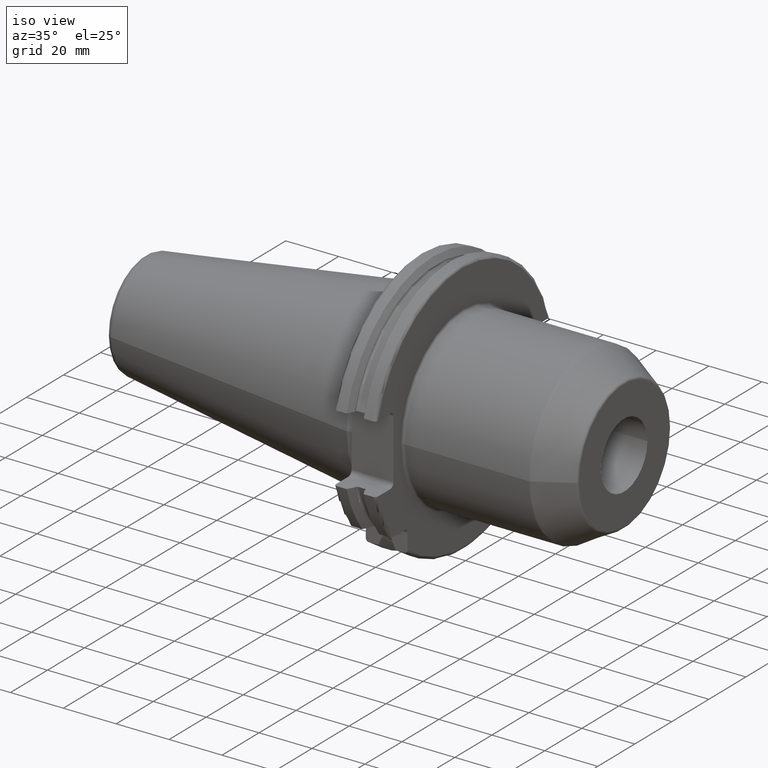
[diagram: clean part render]
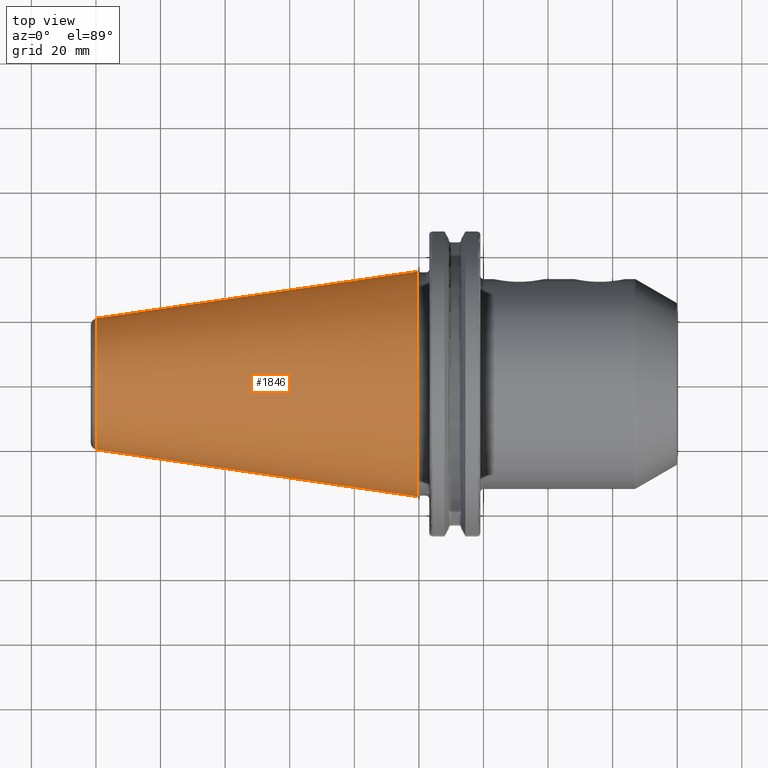
[diagram: tour spotlight — one face highlighted and labeled with its STEP entity id]
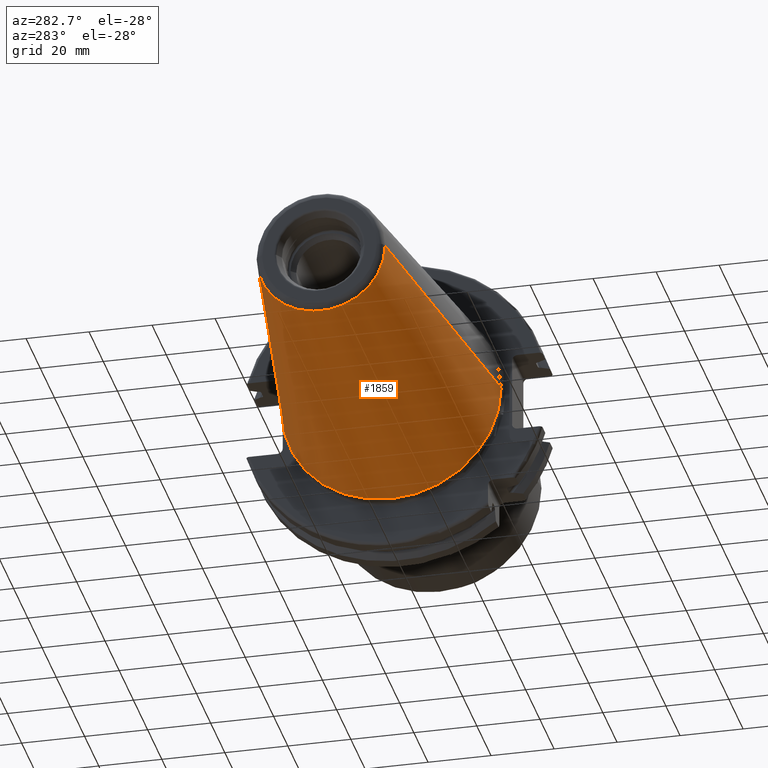
[diagram: tour spotlight — one face highlighted and labeled with its STEP entity id]
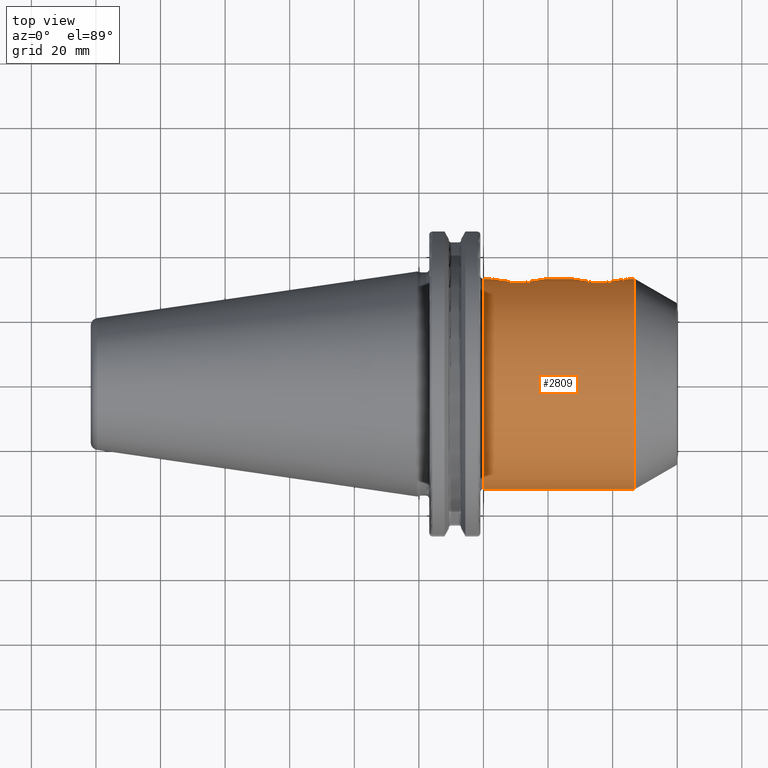
[diagram: tour spotlight — one face highlighted and labeled with its STEP entity id]
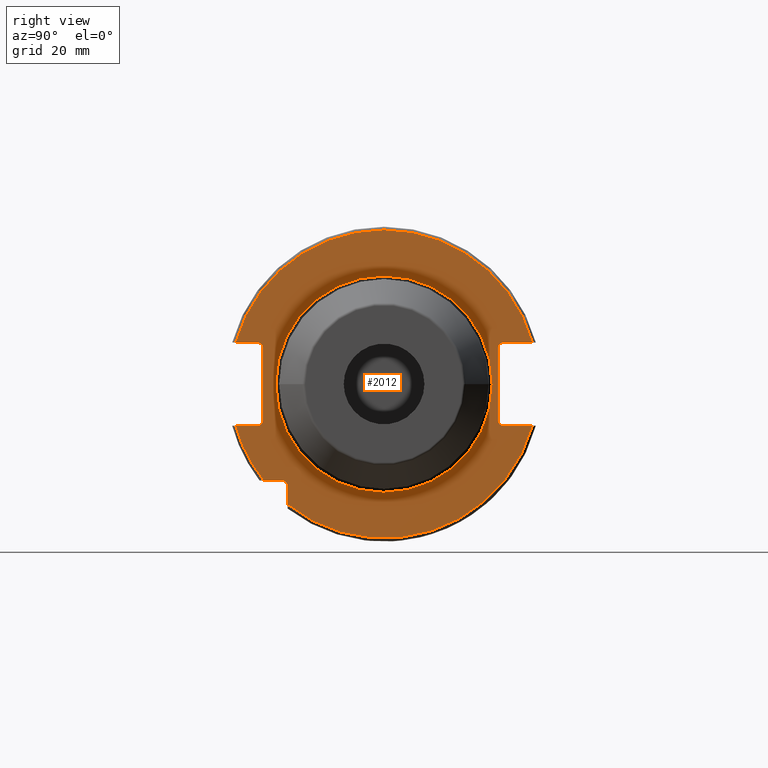
[diagram: tour spotlight — one face highlighted and labeled with its STEP entity id]
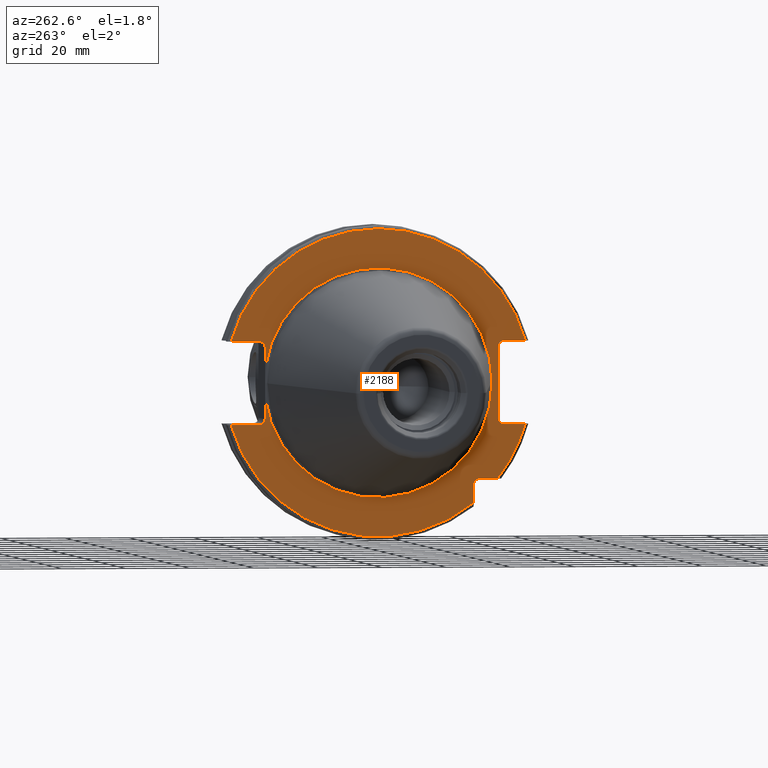
[diagram: tour spotlight — one face highlighted and labeled with its STEP entity id]
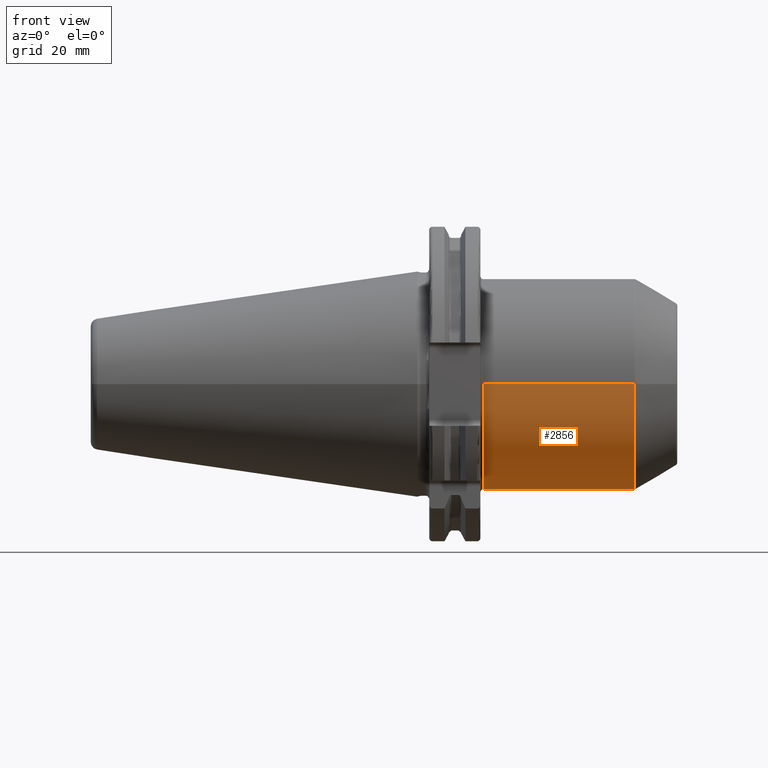
[diagram: tour spotlight — one face highlighted and labeled with its STEP entity id]
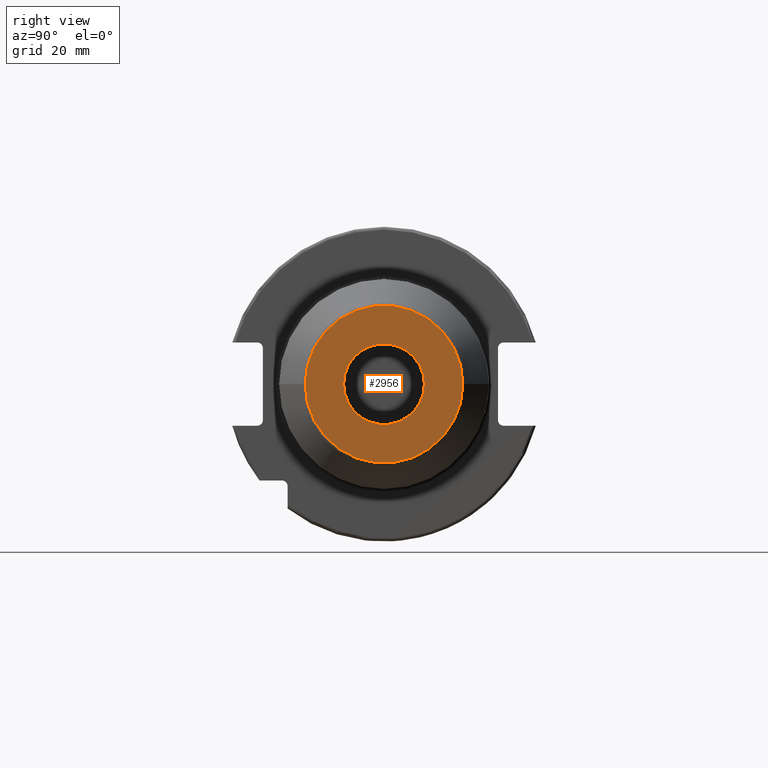
[diagram: tour spotlight — one face highlighted and labeled with its STEP entity id]
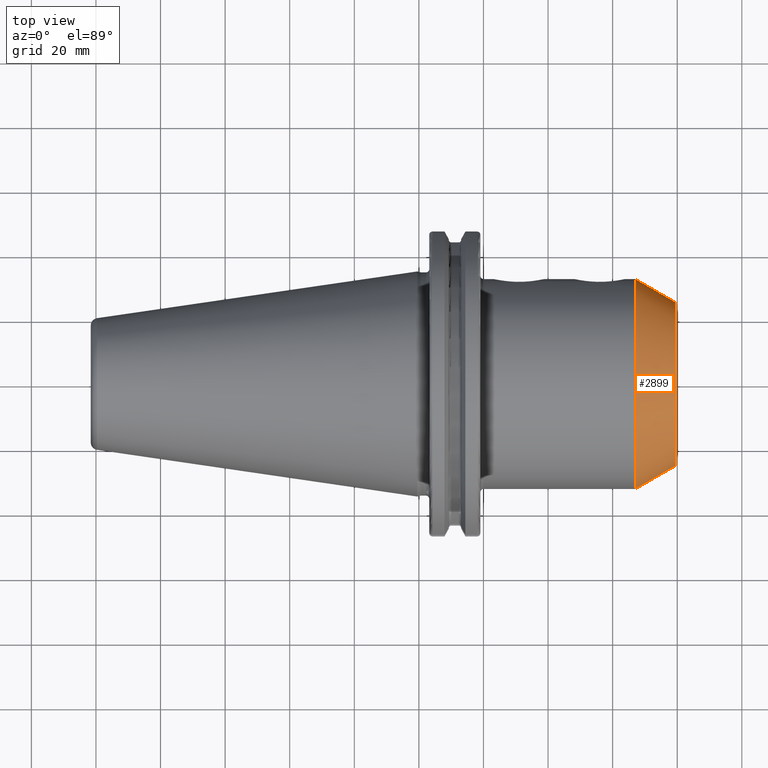
[diagram: tour spotlight — one face highlighted and labeled with its STEP entity id]
A machine part: a face-by-face anatomy tour. The part has 107 B-rep faces; the first image is the clean iso view, then the 8 largest visible faces are spotlighted one at a time (largest first), each with its STEP entity span.

Face 1 — top view, entity #1846. In plain terms, the highlighted conical surface has half-angle 8.298 deg.
Definition (entity closure, byte-faithful):
#37=CARTESIAN_POINT('',(-9.967471700563E1,0.E0,0.E0));
#38=DIRECTION('',(1.E0,0.E0,0.E0));
#39=DIRECTION('',(0.E0,1.E0,0.E0));
#40=AXIS2_PLACEMENT_3D('',#37,#38,#39);
#42=CARTESIAN_POINT('',(-4.896823332305E-1,0.E0,0.E0));
#43=DIRECTION('',(1.E0,0.E0,0.E0));
#44=DIRECTION('',(0.E0,1.E0,0.E0));
#45=AXIS2_PLACEMENT_3D('',#42,#43,#44);
#47=DIRECTION('',(-9.895312636440E-1,-1.443186691705E-1,0.E0));
#48=VECTOR('',#47,1.002343617797E2);
#49=CARTESIAN_POINT('',(-4.896823332305E-1,3.485358204157E1,0.E0));
#50=LINE('',#49,#48);
#51=DIRECTION('',(-9.895312636440E-1,1.443186691705E-1,0.E0));
#52=VECTOR('',#51,1.002343617797E2);
#53=CARTESIAN_POINT('',(-4.896823332305E-1,-3.485358204157E1,0.E0));
#54=LINE('',#53,#52);
#1510=CARTESIAN_POINT('',(-9.967471700563E1,2.038789234437E1,0.E0));
#1512=VERTEX_POINT('',#1510);
#1514=CARTESIAN_POINT('',(-9.967471700563E1,-2.038789234437E1,0.E0));
#1516=VERTEX_POINT('',#1514);
#1578=CARTESIAN_POINT('',(-4.896823332305E-1,3.485358204157E1,0.E0));
#1579=VERTEX_POINT('',#1578);
#1580=CARTESIAN_POINT('',(-4.896823332305E-1,-3.485358204157E1,0.E0));
#1581=VERTEX_POINT('',#1580);
#1832=CARTESIAN_POINT('',(-5.008219966943E1,0.E0,0.E0));
#1833=DIRECTION('',(1.E0,0.E0,0.E0));
#1834=DIRECTION('',(0.E0,-1.E0,0.E0));
#1835=AXIS2_PLACEMENT_3D('',#1832,#1833,#1834);
#1836=CONICAL_SURFACE('',#1835,2.762073719297E1,8.297826828206E0);
#1838=ORIENTED_EDGE('',*,*,#1837,.F.);
#1840=ORIENTED_EDGE('',*,*,#1839,.T.);
#1842=ORIENTED_EDGE('',*,*,#1841,.T.);
#1843=ORIENTED_EDGE('',*,*,#1825,.F.);
#1844=EDGE_LOOP('',(#1838,#1840,#1842,#1843));
#1845=FACE_OUTER_BOUND('',#1844,.F.);
#1846=ADVANCED_FACE('',(#1845),#1836,.T.);
#41=CIRCLE('',#40,2.038789234437E1);
#46=CIRCLE('',#45,3.485358204157E1);
#1825=EDGE_CURVE('',#1512,#1516,#41,.T.);
#1837=EDGE_CURVE('',#1579,#1512,#50,.T.);
#1839=EDGE_CURVE('',#1579,#1581,#46,.T.);
#1841=EDGE_CURVE('',#1581,#1516,#54,.T.);

Face 2 — auxiliary view, entity #1859. In plain terms, the highlighted conical surface has half-angle 8.298 deg.
Definition (entity closure, byte-faithful):
#32=CARTESIAN_POINT('',(-9.967471700563E1,0.E0,0.E0));
#33=DIRECTION('',(-1.E0,0.E0,0.E0));
#34=DIRECTION('',(0.E0,1.E0,0.E0));
#35=AXIS2_PLACEMENT_3D('',#32,#33,#34);
#47=DIRECTION('',(-9.895312636440E-1,-1.443186691705E-1,0.E0));
#48=VECTOR('',#47,1.002343617797E2);
#49=CARTESIAN_POINT('',(-4.896823332305E-1,3.485358204157E1,0.E0));
#50=LINE('',#49,#48);
#51=DIRECTION('',(-9.895312636440E-1,1.443186691705E-1,0.E0));
#52=VECTOR('',#51,1.002343617797E2);
#53=CARTESIAN_POINT('',(-4.896823332305E-1,-3.485358204157E1,0.E0));
#54=LINE('',#53,#52);
#55=CARTESIAN_POINT('',(-4.896823332305E-1,0.E0,0.E0));
#56=DIRECTION('',(-1.E0,0.E0,0.E0));
#57=DIRECTION('',(0.E0,1.E0,0.E0));
#58=AXIS2_PLACEMENT_3D('',#55,#56,#57);
#1510=CARTESIAN_POINT('',(-9.967471700563E1,2.038789234437E1,0.E0));
#1512=VERTEX_POINT('',#1510);
#1514=CARTESIAN_POINT('',(-9.967471700563E1,-2.038789234437E1,0.E0));
#1516=VERTEX_POINT('',#1514);
#1578=CARTESIAN_POINT('',(-4.896823332305E-1,3.485358204157E1,0.E0));
#1579=VERTEX_POINT('',#1578);
#1580=CARTESIAN_POINT('',(-4.896823332305E-1,-3.485358204157E1,0.E0));
#1581=VERTEX_POINT('',#1580);
#1847=CARTESIAN_POINT('',(-5.008219966943E1,0.E0,0.E0));
#1848=DIRECTION('',(1.E0,0.E0,0.E0));
#1849=DIRECTION('',(0.E0,-1.E0,0.E0));
#1850=AXIS2_PLACEMENT_3D('',#1847,#1848,#1849);
#1851=CONICAL_SURFACE('',#1850,2.762073719297E1,8.297826828206E0);
#1852=ORIENTED_EDGE('',*,*,#1837,.T.);
#1853=ORIENTED_EDGE('',*,*,#1814,.T.);
#1854=ORIENTED_EDGE('',*,*,#1841,.F.);
#1856=ORIENTED_EDGE('',*,*,#1855,.F.);
#1857=EDGE_LOOP('',(#1852,#1853,#1854,#1856));
#1858=FACE_OUTER_BOUND('',#1857,.F.);
#1859=ADVANCED_FACE('',(#1858),#1851,.T.);
#36=CIRCLE('',#35,2.038789234437E1);
#59=CIRCLE('',#58,3.485358204157E1);
#1814=EDGE_CURVE('',#1512,#1516,#36,.T.);
#1837=EDGE_CURVE('',#1579,#1512,#50,.T.);
#1841=EDGE_CURVE('',#1581,#1516,#54,.T.);
#1855=EDGE_CURVE('',#1579,#1581,#59,.T.);

Face 3 — top view, entity #2809. In plain terms, the highlighted cylindrical surface (partial cylindrical patch) has radius 32.5 mm, axis along (1, 0, 0).
Definition (entity closure, byte-faithful):
#962=CARTESIAN_POINT('',(3.9E1,3.25E1,0.E0));
#963=CARTESIAN_POINT('',(3.9E1,3.25E1,4.215853271721E-1));
#964=CARTESIAN_POINT('',(3.893420198949E1,3.248371053763E1,1.252491815450E0));
#965=CARTESIAN_POINT('',(3.864247872854E1,3.241315326293E1,2.472869070872E0));
#966=CARTESIAN_POINT('',(3.816630457914E1,3.230335188461E1,3.628052804934E0));
#967=CARTESIAN_POINT('',(3.751606744266E1,3.216424085058E1,4.697290315443E0));
#968=CARTESIAN_POINT('',(3.670307367758E1,3.200815091600E1,5.657170188044E0));
#969=CARTESIAN_POINT('',(3.574511915712E1,3.185003030661E1,6.482280460827E0));
#970=CARTESIAN_POINT('',(3.466158292098E1,3.170542851155E1,7.150685423550E0));
#971=CARTESIAN_POINT('',(3.348952771064E1,3.159064610410E1,7.637603906824E0));
#972=CARTESIAN_POINT('',(3.226758501290E1,3.151740599812E1,7.931879682744E0));
#973=CARTESIAN_POINT('',(3.102154860485E1,3.149172665243E1,8.032368074987E0));
#974=CARTESIAN_POINT('',(2.977409453357E1,3.151573065074E1,7.938477686264E0));
#975=CARTESIAN_POINT('',(2.855051014384E1,3.158749786612E1,7.650502081075E0));
#976=CARTESIAN_POINT('',(2.737707592693E1,3.170096384769E1,7.170252039045E0));
#977=CARTESIAN_POINT('',(2.628995147344E1,3.184475257730E1,6.508004664845E0));
#978=CARTESIAN_POINT('',(2.532288796578E1,3.200344363878E1,5.683812204444E0));
#979=CARTESIAN_POINT('',(2.450070436012E1,3.216078604916E1,4.721189178335E0));
#980=CARTESIAN_POINT('',(2.384305852352E1,3.230124162825E1,3.647297279447E0));
#981=CARTESIAN_POINT('',(2.336179694464E1,3.241213022226E1,2.487147792661E0));
#982=CARTESIAN_POINT('',(2.306665170884E1,3.248349790692E1,1.260330477102E0));
#983=CARTESIAN_POINT('',(2.3E1,3.25E1,4.243370860866E-1));
#984=CARTESIAN_POINT('',(2.3E1,3.25E1,0.E0));
#986=CARTESIAN_POINT('',(6.4E1,3.25E1,0.E0));
#987=CARTESIAN_POINT('',(6.4E1,3.25E1,4.215853271720E-1));
#988=CARTESIAN_POINT('',(6.393420198949E1,3.248371053763E1,1.252491815450E0));
#989=CARTESIAN_POINT('',(6.364247872854E1,3.241315326293E1,2.472869070872E0));
#990=CARTESIAN_POINT('',(6.316630457914E1,3.230335188461E1,3.628052804934E0));
#991=CARTESIAN_POINT('',(6.251606744266E1,3.216424085058E1,4.697290315443E0));
#992=CARTESIAN_POINT('',(6.170307367758E1,3.200815091600E1,5.657170188044E0));
#993=CARTESIAN_POINT('',(6.074511915712E1,3.185003030661E1,6.482280460827E0));
#994=CARTESIAN_POINT('',(5.966158292098E1,3.170542851155E1,7.150685423550E0));
#995=CARTESIAN_POINT('',(5.848952771064E1,3.159064610410E1,7.637603906824E0));
#996=CARTESIAN_POINT('',(5.726758501290E1,3.151740599812E1,7.931879682744E0));
#997=CARTESIAN_POINT('',(5.602154860485E1,3.149172665243E1,8.032368074987E0));
#998=CARTESIAN_POINT('',(5.477409453357E1,3.151573065074E1,7.938477686264E0));
#999=CARTESIAN_POINT('',(5.355051014384E1,3.158749786612E1,7.650502081075E0));
#1000=CARTESIAN_POINT('',(5.237707592693E1,3.170096384769E1,7.170252039045E0));
#1001=CARTESIAN_POINT('',(5.128995147344E1,3.184475257730E1,6.508004664845E0));
#1002=CARTESIAN_POINT('',(5.032288796578E1,3.200344363878E1,5.683812204444E0));
#1003=CARTESIAN_POINT('',(4.950070436012E1,3.216078604916E1,4.721189178335E0));
#1004=CARTESIAN_POINT('',(4.884305852352E1,3.230124162825E1,3.647297279447E0));
#1005=CARTESIAN_POINT('',(4.836179694464E1,3.241213022226E1,2.487147792661E0));
#1006=CARTESIAN_POINT('',(4.806665170884E1,3.248349790692E1,1.260330477102E0));
#1007=CARTESIAN_POINT('',(4.8E1,3.25E1,4.243370860866E-1));
#1008=CARTESIAN_POINT('',(4.8E1,3.25E1,0.E0));
#1010=CARTESIAN_POINT('',(6.673205080757E1,0.E0,0.E0));
#1011=DIRECTION('',(-1.E0,0.E0,0.E0));
#1012=DIRECTION('',(0.E0,-1.E0,0.E0));
#1013=AXIS2_PLACEMENT_3D('',#1010,#1011,#1012);
#1015=CARTESIAN_POINT('',(2.005E1,0.E0,0.E0));
#1016=DIRECTION('',(1.E0,0.E0,0.E0));
#1017=DIRECTION('',(0.E0,1.E0,0.E0));
#1018=AXIS2_PLACEMENT_3D('',#1015,#1016,#1017);
#1052=DIRECTION('',(-1.E0,0.E0,1.864312612009E-12));
#1053=VECTOR('',#1052,2.95E0);
#1054=CARTESIAN_POINT('',(2.3E1,3.25E1,0.E0));
#1055=LINE('',#1054,#1053);
#1061=DIRECTION('',(-1.E0,0.E0,-2.357756631787E-13));
#1062=VECTOR('',#1061,4.668205080757E1);
#1063=CARTESIAN_POINT('',(6.673205080757E1,-3.25E1,5.500200266995E-12));
#1064=LINE('',#1063,#1062);
#1070=DIRECTION('',(-1.E0,0.E0,2.014307946665E-12));
#1071=VECTOR('',#1070,2.732050807569E0);
#1072=CARTESIAN_POINT('',(6.673205080757E1,3.25E1,-5.501198131883E-12));
#1073=LINE('',#1072,#1071);
#1098=DIRECTION('',(-1.E0,0.E0,0.E0));
#1099=VECTOR('',#1098,9.E0);
#1100=CARTESIAN_POINT('',(4.8E1,3.25E1,0.E0));
#1101=LINE('',#1100,#1099);
#1730=CARTESIAN_POINT('',(6.4E1,3.25E1,0.E0));
#1732=VERTEX_POINT('',#1730);
#1734=CARTESIAN_POINT('',(4.8E1,3.25E1,0.E0));
#1736=VERTEX_POINT('',#1734);
#1743=CARTESIAN_POINT('',(2.005E1,-3.25E1,0.E0));
#1744=CARTESIAN_POINT('',(2.005E1,3.25E1,0.E0));
#1745=VERTEX_POINT('',#1743);
#1746=VERTEX_POINT('',#1744);
#1747=CARTESIAN_POINT('',(6.673205080757E1,3.25E1,0.E0));
#1748=CARTESIAN_POINT('',(6.673205080757E1,-3.25E1,0.E0));
#1749=VERTEX_POINT('',#1747);
#1750=VERTEX_POINT('',#1748);
#1763=VERTEX_POINT('',#962);
#1764=VERTEX_POINT('',#984);
#2787=CARTESIAN_POINT('',(1.60025E1,0.E0,0.E0));
#2788=DIRECTION('',(1.E0,0.E0,0.E0));
#2789=DIRECTION('',(0.E0,-1.E0,0.E0));
#2790=AXIS2_PLACEMENT_3D('',#2787,#2788,#2789);
#2791=CYLINDRICAL_SURFACE('',#2790,3.25E1);
#2793=ORIENTED_EDGE('',*,*,#2792,.F.);
#2795=ORIENTED_EDGE('',*,*,#2794,.F.);
#2797=ORIENTED_EDGE('',*,*,#2796,.F.);
#2799=ORIENTED_EDGE('',*,*,#2798,.F.);
#2801=ORIENTED_EDGE('',*,*,#2800,.F.);
#2803=ORIENTED_EDGE('',*,*,#2802,.T.);
#2804=ORIENTED_EDGE('',*,*,#2781,.F.);
#2806=ORIENTED_EDGE('',*,*,#2805,.F.);
#2807=EDGE_LOOP('',(#2793,#2795,#2797,#2799,#2801,#2803,#2804,#2806));
#2808=FACE_OUTER_BOUND('',#2807,.F.);
#2809=ADVANCED_FACE('',(#2808),#2791,.T.);
#985=B_SPLINE_CURVE_WITH_KNOTS('',3,(#962,#963,#964,#965,#966,#967,#968,#969,
#970,#971,#972,#973,#974,#975,#976,#977,#978,#979,#980,#981,#982,#983,#984),
.UNSPECIFIED.,.F.,.F.,(4,1,1,1,1,1,1,1,1,1,1,1,1,1,1,1,1,1,1,1,4),(0.E0,5.E-2,
1.E-1,1.5E-1,2.E-1,2.5E-1,3.E-1,3.5E-1,4.E-1,4.5E-1,5.E-1,5.5E-1,6.E-1,6.5E-1,
7.E-1,7.5E-1,8.E-1,8.5E-1,9.E-1,9.5E-1,1.E0),.UNSPECIFIED.);
#1009=B_SPLINE_CURVE_WITH_KNOTS('',3,(#986,#987,#988,#989,#990,#991,#992,#993,
#994,#995,#996,#997,#998,#999,#1000,#1001,#1002,#1003,#1004,#1005,#1006,#1007,
#1008),.UNSPECIFIED.,.F.,.F.,(4,1,1,1,1,1,1,1,1,1,1,1,1,1,1,1,1,1,1,1,4),(0.E0,
5.E-2,1.E-1,1.5E-1,2.E-1,2.5E-1,3.E-1,3.5E-1,4.E-1,4.5E-1,5.E-1,5.5E-1,6.E-1,
6.5E-1,7.E-1,7.5E-1,8.E-1,8.5E-1,9.E-1,9.5E-1,1.E0),.UNSPECIFIED.);
#1014=CIRCLE('',#1013,3.25E1);
#1019=CIRCLE('',#1018,3.25E1);
#2781=EDGE_CURVE('',#1746,#1745,#1019,.T.);
#2792=EDGE_CURVE('',#1763,#1764,#985,.T.);
#2794=EDGE_CURVE('',#1736,#1763,#1101,.T.);
#2796=EDGE_CURVE('',#1732,#1736,#1009,.T.);
#2798=EDGE_CURVE('',#1749,#1732,#1073,.T.);
#2800=EDGE_CURVE('',#1750,#1749,#1014,.T.);
#2802=EDGE_CURVE('',#1750,#1745,#1064,.T.);
#2805=EDGE_CURVE('',#1764,#1746,#1055,.T.);

Face 4 — right view, entity #2012. In plain terms, the highlighted planar face has unit normal (1, 0, 0).
Definition (entity closure, byte-faithful):
#130=CARTESIAN_POINT('',(1.905E1,3.705E1,1.115E1));
#131=DIRECTION('',(-1.E0,0.E0,0.E0));
#132=DIRECTION('',(0.E0,-1.E0,0.E0));
#133=AXIS2_PLACEMENT_3D('',#130,#131,#132);
#140=DIRECTION('',(0.E0,0.E0,1.E0));
#141=VECTOR('',#140,2.23E1);
#142=CARTESIAN_POINT('',(1.905E1,-3.75E1,-1.115E1));
#143=LINE('',#142,#141);
#144=DIRECTION('',(0.E0,1.E0,0.E0));
#145=VECTOR('',#144,6.711493733886E0);
#146=CARTESIAN_POINT('',(1.905E1,-4.596149373389E1,1.29E1));
#147=LINE('',#146,#145);
#148=DIRECTION('',(0.E0,-1.E0,0.E0));
#149=VECTOR('',#148,8.911493733886E0);
#150=CARTESIAN_POINT('',(1.905E1,4.596149373389E1,1.29E1));
#151=LINE('',#150,#149);
#152=DIRECTION('',(0.E0,0.E0,-1.E0));
#153=VECTOR('',#152,2.23E1);
#154=CARTESIAN_POINT('',(1.905E1,3.53E1,1.115E1));
#155=LINE('',#154,#153);
#156=DIRECTION('',(0.E0,-1.E0,0.E0));
#157=VECTOR('',#156,8.911493733886E0);
#158=CARTESIAN_POINT('',(1.905E1,4.596149373389E1,-1.29E1));
#159=LINE('',#158,#157);
#160=DIRECTION('',(0.E0,0.E0,1.E0));
#161=VECTOR('',#160,5.653810627237E0);
#162=CARTESIAN_POINT('',(1.905E1,-2.985E1,-3.725381062724E1));
#163=LINE('',#162,#161);
#164=DIRECTION('',(0.E0,-1.E0,0.E0));
#165=VECTOR('',#164,5.653810627237E0);
#166=CARTESIAN_POINT('',(1.905E1,-3.16E1,-2.985E1));
#167=LINE('',#166,#165);
#168=DIRECTION('',(0.E0,1.E0,0.E0));
#169=VECTOR('',#168,6.711493733886E0);
#170=CARTESIAN_POINT('',(1.905E1,-4.596149373389E1,-1.29E1));
#171=LINE('',#170,#169);
#172=CARTESIAN_POINT('',(1.905E1,0.E0,0.E0));
#173=DIRECTION('',(1.E0,0.E0,0.E0));
#174=DIRECTION('',(0.E0,-1.E0,0.E0));
#175=AXIS2_PLACEMENT_3D('',#172,#173,#174);
#177=CARTESIAN_POINT('',(1.905E1,0.E0,0.E0));
#178=DIRECTION('',(1.E0,0.E0,0.E0));
#179=DIRECTION('',(0.E0,1.E0,0.E0));
#180=AXIS2_PLACEMENT_3D('',#177,#178,#179);
#190=CARTESIAN_POINT('',(1.905E1,-3.925E1,-1.115E1));
#191=DIRECTION('',(-1.E0,0.E0,0.E0));
#192=DIRECTION('',(0.E0,1.E0,0.E0));
#193=AXIS2_PLACEMENT_3D('',#190,#191,#192);
#213=CARTESIAN_POINT('',(1.905E1,4.596149373389E1,-1.29E1));
#225=CARTESIAN_POINT('',(1.905E1,0.E0,0.E0));
#226=DIRECTION('',(-1.E0,0.E0,0.E0));
#227=DIRECTION('',(0.E0,9.627964123359E-1,-2.702278083268E-1));
#228=AXIS2_PLACEMENT_3D('',#225,#226,#227);
#230=CARTESIAN_POINT('',(1.905E1,-4.596149373389E1,-1.29E1));
#241=CARTESIAN_POINT('',(1.905E1,0.E0,0.E0));
#242=DIRECTION('',(-1.E0,0.E0,0.E0));
#243=DIRECTION('',(0.E0,-7.803888060170E-1,-6.252945797329E-1));
#244=AXIS2_PLACEMENT_3D('',#241,#242,#243);
#255=CARTESIAN_POINT('',(1.905E1,-3.725381062724E1,-2.985E1));
#261=CARTESIAN_POINT('',(1.905E1,3.705E1,-1.115E1));
#262=DIRECTION('',(-1.E0,0.E0,0.E0));
#263=DIRECTION('',(0.E0,0.E0,-1.E0));
#264=AXIS2_PLACEMENT_3D('',#261,#262,#263);
#326=CARTESIAN_POINT('',(1.905E1,-3.925E1,1.115E1));
#327=DIRECTION('',(-1.E0,0.E0,0.E0));
#328=DIRECTION('',(0.E0,0.E0,1.E0));
#329=AXIS2_PLACEMENT_3D('',#326,#327,#328);
#367=CARTESIAN_POINT('',(1.905E1,4.596149373389E1,1.29E1));
#378=CARTESIAN_POINT('',(1.905E1,0.E0,0.E0));
#379=DIRECTION('',(1.E0,0.E0,0.E0));
#380=DIRECTION('',(0.E0,9.627964123359E-1,2.702278083268E-1));
#381=AXIS2_PLACEMENT_3D('',#378,#379,#380);
#392=CARTESIAN_POINT('',(1.905E1,-4.596149373389E1,1.29E1));
#741=CARTESIAN_POINT('',(1.905E1,-3.16E1,-3.16E1));
#742=DIRECTION('',(-1.E0,0.E0,0.E0));
#743=DIRECTION('',(0.E0,0.E0,1.E0));
#744=AXIS2_PLACEMENT_3D('',#741,#742,#743);
#1651=VERTEX_POINT('',#367);
#1652=VERTEX_POINT('',#392);
#1655=VERTEX_POINT('',#213);
#1656=VERTEX_POINT('',#230);
#1675=CARTESIAN_POINT('',(1.905E1,-2.985E1,-3.725381062724E1));
#1676=VERTEX_POINT('',#1675);
#1683=CARTESIAN_POINT('',(1.905E1,-3.75E1,-1.115E1));
#1685=VERTEX_POINT('',#1683);
#1687=CARTESIAN_POINT('',(1.905E1,-3.925E1,-1.29E1));
#1689=VERTEX_POINT('',#1687);
#1691=CARTESIAN_POINT('',(1.905E1,-3.925E1,1.29E1));
#1693=VERTEX_POINT('',#1691);
#1695=CARTESIAN_POINT('',(1.905E1,-3.75E1,1.115E1));
#1697=VERTEX_POINT('',#1695);
#1699=CARTESIAN_POINT('',(1.905E1,3.53E1,1.115E1));
#1701=VERTEX_POINT('',#1699);
#1703=CARTESIAN_POINT('',(1.905E1,3.705E1,1.29E1));
#1705=VERTEX_POINT('',#1703);
#1707=CARTESIAN_POINT('',(1.905E1,3.705E1,-1.29E1));
#1709=VERTEX_POINT('',#1707);
#1711=CARTESIAN_POINT('',(1.905E1,3.53E1,-1.115E1));
#1713=VERTEX_POINT('',#1711);
#1715=CARTESIAN_POINT('',(1.905E1,-3.16E1,-2.985E1));
#1716=CARTESIAN_POINT('',(1.905E1,-2.985E1,-3.16E1));
#1717=VERTEX_POINT('',#1715);
#1718=VERTEX_POINT('',#1716);
#1739=CARTESIAN_POINT('',(1.905E1,-3.35E1,0.E0));
#1740=CARTESIAN_POINT('',(1.905E1,3.35E1,0.E0));
#1741=VERTEX_POINT('',#1739);
#1742=VERTEX_POINT('',#1740);
#1784=VERTEX_POINT('',#255);
#1969=CARTESIAN_POINT('',(1.905E1,0.E0,0.E0));
#1970=DIRECTION('',(1.E0,0.E0,0.E0));
#1971=DIRECTION('',(0.E0,-1.E0,0.E0));
#1972=AXIS2_PLACEMENT_3D('',#1969,#1970,#1971);
#1973=PLANE('',#1972);
#1975=ORIENTED_EDGE('',*,*,#1974,.T.);
#1977=ORIENTED_EDGE('',*,*,#1976,.F.);
#1979=ORIENTED_EDGE('',*,*,#1978,.F.);
#1981=ORIENTED_EDGE('',*,*,#1980,.F.);
#1983=ORIENTED_EDGE('',*,*,#1982,.T.);
#1984=ORIENTED_EDGE('',*,*,#1960,.F.);
#1985=ORIENTED_EDGE('',*,*,#1949,.T.);
#1987=ORIENTED_EDGE('',*,*,#1986,.F.);
#1989=ORIENTED_EDGE('',*,*,#1988,.F.);
#1991=ORIENTED_EDGE('',*,*,#1990,.T.);
#1993=ORIENTED_EDGE('',*,*,#1992,.T.);
#1995=ORIENTED_EDGE('',*,*,#1994,.F.);
#1997=ORIENTED_EDGE('',*,*,#1996,.T.);
#1999=ORIENTED_EDGE('',*,*,#1998,.T.);
#2001=ORIENTED_EDGE('',*,*,#2000,.T.);
#2003=ORIENTED_EDGE('',*,*,#2002,.F.);
#2004=EDGE_LOOP('',(#1975,#1977,#1979,#1981,#1983,#1984,#1985,#1987,#1989,#1991,
#1993,#1995,#1997,#1999,#2001,#2003));
#2005=FACE_OUTER_BOUND('',#2004,.F.);
#2007=ORIENTED_EDGE('',*,*,#2006,.T.);
#2009=ORIENTED_EDGE('',*,*,#2008,.T.);
#2010=EDGE_LOOP('',(#2007,#2009));
#2011=FACE_BOUND('',#2010,.F.);
#2012=ADVANCED_FACE('',(#2005,#2011),#1973,.T.);
#134=CIRCLE('',#133,1.75E0);
#176=CIRCLE('',#175,3.35E1);
#181=CIRCLE('',#180,3.35E1);
#194=CIRCLE('',#193,1.75E0);
#229=CIRCLE('',#228,4.77375E1);
#245=CIRCLE('',#244,4.77375E1);
#265=CIRCLE('',#264,1.75E0);
#330=CIRCLE('',#329,1.75E0);
#382=CIRCLE('',#381,4.77375E1);
#745=CIRCLE('',#744,1.75E0);
#1949=EDGE_CURVE('',#1701,#1713,#155,.T.);
#1960=EDGE_CURVE('',#1701,#1705,#134,.T.);
#1974=EDGE_CURVE('',#1685,#1697,#143,.T.);
#1976=EDGE_CURVE('',#1693,#1697,#330,.T.);
#1978=EDGE_CURVE('',#1652,#1693,#147,.T.);
#1980=EDGE_CURVE('',#1651,#1652,#382,.T.);
#1982=EDGE_CURVE('',#1651,#1705,#151,.T.);
#1986=EDGE_CURVE('',#1709,#1713,#265,.T.);
#1988=EDGE_CURVE('',#1655,#1709,#159,.T.);
#1990=EDGE_CURVE('',#1655,#1676,#229,.T.);
#1992=EDGE_CURVE('',#1676,#1718,#163,.T.);
#1994=EDGE_CURVE('',#1717,#1718,#745,.T.);
#1996=EDGE_CURVE('',#1717,#1784,#167,.T.);
#1998=EDGE_CURVE('',#1784,#1656,#245,.T.);
#2000=EDGE_CURVE('',#1656,#1689,#171,.T.);
#2002=EDGE_CURVE('',#1685,#1689,#194,.T.);
#2006=EDGE_CURVE('',#1741,#1742,#176,.T.);
#2008=EDGE_CURVE('',#1742,#1741,#181,.T.);

Face 5 — auxiliary view, entity #2188. In plain terms, the highlighted planar face has unit normal (1, 0, 0).
Definition (entity closure, byte-faithful):
#105=CARTESIAN_POINT('',(3.2E0,3.53E1,-4.414818795828E0));
#117=CARTESIAN_POINT('',(3.2E0,0.E0,0.E0));
#118=DIRECTION('',(-1.E0,0.E0,0.E0));
#119=DIRECTION('',(0.E0,9.922698524245E-1,-1.240989120402E-1));
#120=AXIS2_PLACEMENT_3D('',#117,#118,#119);
#135=CARTESIAN_POINT('',(3.2E0,3.705E1,1.115E1));
#136=DIRECTION('',(1.E0,0.E0,0.E0));
#137=DIRECTION('',(0.E0,0.E0,1.E0));
#138=AXIS2_PLACEMENT_3D('',#135,#136,#137);
#195=CARTESIAN_POINT('',(3.2E0,-3.925E1,-1.115E1));
#196=DIRECTION('',(1.E0,0.E0,0.E0));
#197=DIRECTION('',(0.E0,0.E0,-1.E0));
#198=AXIS2_PLACEMENT_3D('',#195,#196,#197);
#266=CARTESIAN_POINT('',(3.2E0,3.705E1,-1.115E1));
#267=DIRECTION('',(1.E0,0.E0,0.E0));
#268=DIRECTION('',(0.E0,-1.E0,0.E0));
#269=AXIS2_PLACEMENT_3D('',#266,#267,#268);
#271=DIRECTION('',(0.E0,1.E0,0.E0));
#272=VECTOR('',#271,6.711493733886E0);
#273=CARTESIAN_POINT('',(3.2E0,-4.596149373389E1,1.29E1));
#274=LINE('',#273,#272);
#275=DIRECTION('',(0.E0,0.E0,1.E0));
#276=VECTOR('',#275,2.23E1);
#277=CARTESIAN_POINT('',(3.2E0,-3.75E1,-1.115E1));
#278=LINE('',#277,#276);
#279=DIRECTION('',(0.E0,1.E0,0.E0));
#280=VECTOR('',#279,6.711493733886E0);
#281=CARTESIAN_POINT('',(3.2E0,-4.596149373389E1,-1.29E1));
#282=LINE('',#281,#280);
#283=CARTESIAN_POINT('',(3.2E0,0.E0,0.E0));
#284=DIRECTION('',(-1.E0,0.E0,0.E0));
#285=DIRECTION('',(0.E0,-7.803888060170E-1,-6.252945797329E-1));
#286=AXIS2_PLACEMENT_3D('',#283,#284,#285);
#288=DIRECTION('',(0.E0,-1.E0,0.E0));
#289=VECTOR('',#288,5.653810627237E0);
#290=CARTESIAN_POINT('',(3.2E0,-3.16E1,-2.985E1));
#291=LINE('',#290,#289);
#292=DIRECTION('',(0.E0,0.E0,1.E0));
#293=VECTOR('',#292,5.653810627237E0);
#294=CARTESIAN_POINT('',(3.2E0,-2.985E1,-3.725381062724E1));
#295=LINE('',#294,#293);
#296=CARTESIAN_POINT('',(3.2E0,0.E0,0.E0));
#297=DIRECTION('',(-1.E0,0.E0,0.E0));
#298=DIRECTION('',(0.E0,9.627964123359E-1,-2.702278083268E-1));
#299=AXIS2_PLACEMENT_3D('',#296,#297,#298);
#301=DIRECTION('',(0.E0,-1.E0,0.E0));
#302=VECTOR('',#301,8.911493733886E0);
#303=CARTESIAN_POINT('',(3.2E0,4.596149373389E1,-1.29E1));
#304=LINE('',#303,#302);
#305=DIRECTION('',(0.E0,0.E0,-1.E0));
#306=VECTOR('',#305,6.735181204172E0);
#307=CARTESIAN_POINT('',(3.2E0,3.53E1,-4.414818795828E0));
#308=LINE('',#307,#306);
#309=DIRECTION('',(0.E0,0.E0,-1.E0));
#310=VECTOR('',#309,6.735181204172E0);
#311=CARTESIAN_POINT('',(3.2E0,3.53E1,1.115E1));
#312=LINE('',#311,#310);
#313=DIRECTION('',(0.E0,-1.E0,0.E0));
#314=VECTOR('',#313,8.911493733886E0);
#315=CARTESIAN_POINT('',(3.2E0,4.596149373389E1,1.29E1));
#316=LINE('',#315,#314);
#317=CARTESIAN_POINT('',(3.2E0,0.E0,0.E0));
#318=DIRECTION('',(1.E0,0.E0,0.E0));
#319=DIRECTION('',(0.E0,9.627964123359E-1,2.702278083268E-1));
#320=AXIS2_PLACEMENT_3D('',#317,#318,#319);
#331=CARTESIAN_POINT('',(3.2E0,-3.925E1,1.115E1));
#332=DIRECTION('',(1.E0,0.E0,0.E0));
#333=DIRECTION('',(0.E0,1.E0,0.E0));
#334=AXIS2_PLACEMENT_3D('',#331,#332,#333);
#345=CARTESIAN_POINT('',(3.2E0,4.596149373389E1,1.29E1));
#352=CARTESIAN_POINT('',(3.2E0,-4.596149373389E1,1.29E1));
#746=CARTESIAN_POINT('',(3.2E0,-3.16E1,-3.16E1));
#747=DIRECTION('',(1.E0,0.E0,0.E0));
#748=DIRECTION('',(0.E0,1.E0,0.E0));
#749=AXIS2_PLACEMENT_3D('',#746,#747,#748);
#755=CARTESIAN_POINT('',(3.2E0,4.596149373389E1,-1.29E1));
#790=CARTESIAN_POINT('',(3.2E0,-4.596149373389E1,-1.29E1));
#797=CARTESIAN_POINT('',(3.2E0,-3.725381062724E1,-2.985E1));
#936=CARTESIAN_POINT('',(3.2E0,3.53E1,4.414818795828E0));
#947=CARTESIAN_POINT('',(3.2E0,0.E0,0.E0));
#948=DIRECTION('',(1.E0,0.E0,0.E0));
#949=DIRECTION('',(0.E0,9.922698524245E-1,1.240989120402E-1));
#950=AXIS2_PLACEMENT_3D('',#947,#948,#949);
#1522=CARTESIAN_POINT('',(3.2E0,-3.5575E1,0.E0));
#1524=VERTEX_POINT('',#1522);
#1648=VERTEX_POINT('',#936);
#1650=VERTEX_POINT('',#105);
#1653=VERTEX_POINT('',#345);
#1654=VERTEX_POINT('',#352);
#1657=VERTEX_POINT('',#755);
#1658=VERTEX_POINT('',#790);
#1681=CARTESIAN_POINT('',(3.2E0,-2.985E1,-3.725381062724E1));
#1682=VERTEX_POINT('',#1681);
#1684=CARTESIAN_POINT('',(3.2E0,-3.75E1,-1.115E1));
#1686=VERTEX_POINT('',#1684);
#1688=CARTESIAN_POINT('',(3.2E0,-3.925E1,-1.29E1));
#1690=VERTEX_POINT('',#1688);
#1692=CARTESIAN_POINT('',(3.2E0,-3.925E1,1.29E1));
#1694=VERTEX_POINT('',#1692);
#1696=CARTESIAN_POINT('',(3.2E0,-3.75E1,1.115E1));
#1698=VERTEX_POINT('',#1696);
#1700=CARTESIAN_POINT('',(3.2E0,3.53E1,1.115E1));
#1702=VERTEX_POINT('',#1700);
#1704=CARTESIAN_POINT('',(3.2E0,3.705E1,1.29E1));
#1706=VERTEX_POINT('',#1704);
#1708=CARTESIAN_POINT('',(3.2E0,3.705E1,-1.29E1));
#1710=VERTEX_POINT('',#1708);
#1712=CARTESIAN_POINT('',(3.2E0,3.53E1,-1.115E1));
#1714=VERTEX_POINT('',#1712);
#1719=CARTESIAN_POINT('',(3.2E0,-2.985E1,-3.16E1));
#1720=CARTESIAN_POINT('',(3.2E0,-3.16E1,-2.985E1));
#1721=VERTEX_POINT('',#1719);
#1722=VERTEX_POINT('',#1720);
#1785=VERTEX_POINT('',#797);
#2152=CARTESIAN_POINT('',(3.2E0,0.E0,0.E0));
#2153=DIRECTION('',(1.E0,0.E0,0.E0));
#2154=DIRECTION('',(0.E0,-1.E0,0.E0));
#2155=AXIS2_PLACEMENT_3D('',#2152,#2153,#2154);
#2156=PLANE('',#2155);
#2158=ORIENTED_EDGE('',*,*,#2157,.T.);
#2160=ORIENTED_EDGE('',*,*,#2159,.F.);
#2161=ORIENTED_EDGE('',*,*,#2020,.F.);
#2162=ORIENTED_EDGE('',*,*,#2037,.F.);
#2163=ORIENTED_EDGE('',*,*,#2071,.F.);
#2165=ORIENTED_EDGE('',*,*,#2164,.F.);
#2167=ORIENTED_EDGE('',*,*,#2166,.F.);
#2169=ORIENTED_EDGE('',*,*,#2168,.F.);
#2171=ORIENTED_EDGE('',*,*,#2170,.F.);
#2173=ORIENTED_EDGE('',*,*,#2172,.F.);
#2174=ORIENTED_EDGE('',*,*,#2112,.T.);
#2175=ORIENTED_EDGE('',*,*,#2147,.F.);
#2176=ORIENTED_EDGE('',*,*,#1945,.F.);
#2177=ORIENTED_EDGE('',*,*,#1928,.T.);
#2179=ORIENTED_EDGE('',*,*,#2178,.F.);
#2180=ORIENTED_EDGE('',*,*,#1940,.F.);
#2181=ORIENTED_EDGE('',*,*,#1964,.F.);
#2183=ORIENTED_EDGE('',*,*,#2182,.F.);
#2185=ORIENTED_EDGE('',*,*,#2184,.T.);
#2186=EDGE_LOOP('',(#2158,#2160,#2161,#2162,#2163,#2165,#2167,#2169,#2171,#2173,
#2174,#2175,#2176,#2177,#2179,#2180,#2181,#2183,#2185));
#2187=FACE_OUTER_BOUND('',#2186,.F.);
#2188=ADVANCED_FACE('',(#2187),#2156,.F.);
#121=CIRCLE('',#120,3.5575E1);
#139=CIRCLE('',#138,1.75E0);
#199=CIRCLE('',#198,1.75E0);
#270=CIRCLE('',#269,1.75E0);
#287=CIRCLE('',#286,4.77375E1);
#300=CIRCLE('',#299,4.77375E1);
#321=CIRCLE('',#320,4.77375E1);
#335=CIRCLE('',#334,1.75E0);
#750=CIRCLE('',#749,1.75E0);
#951=CIRCLE('',#950,3.5575E1);
#1928=EDGE_CURVE('',#1650,#1524,#121,.T.);
#1940=EDGE_CURVE('',#1702,#1648,#312,.T.);
#1945=EDGE_CURVE('',#1650,#1714,#308,.T.);
#1964=EDGE_CURVE('',#1706,#1702,#139,.T.);
#2020=EDGE_CURVE('',#1686,#1698,#278,.T.);
#2037=EDGE_CURVE('',#1690,#1686,#199,.T.);
#2071=EDGE_CURVE('',#1658,#1690,#282,.T.);
#2112=EDGE_CURVE('',#1657,#1710,#304,.T.);
#2147=EDGE_CURVE('',#1714,#1710,#270,.T.);
#2157=EDGE_CURVE('',#1654,#1694,#274,.T.);
#2159=EDGE_CURVE('',#1698,#1694,#335,.T.);
#2164=EDGE_CURVE('',#1785,#1658,#287,.T.);
#2166=EDGE_CURVE('',#1722,#1785,#291,.T.);
#2168=EDGE_CURVE('',#1721,#1722,#750,.T.);
#2170=EDGE_CURVE('',#1682,#1721,#295,.T.);
#2172=EDGE_CURVE('',#1657,#1682,#300,.T.);
#2178=EDGE_CURVE('',#1648,#1524,#951,.T.);
#2182=EDGE_CURVE('',#1653,#1706,#316,.T.);
#2184=EDGE_CURVE('',#1653,#1654,#321,.T.);

Face 6 — front view, entity #2856. In plain terms, the highlighted cylindrical surface (partial cylindrical patch) has radius 32.5 mm, axis along (1, 0, 0).
Definition (entity closure, byte-faithful):
#962=CARTESIAN_POINT('',(3.9E1,3.25E1,0.E0));
#984=CARTESIAN_POINT('',(2.3E1,3.25E1,0.E0));
#1028=CARTESIAN_POINT('',(2.3E1,3.25E1,0.E0));
#1029=CARTESIAN_POINT('',(2.3E1,3.25E1,-4.212055071435E-1));
#1030=CARTESIAN_POINT('',(2.306568189060E1,3.248373950034E1,-1.251399501828E0));
#1031=CARTESIAN_POINT('',(2.335691065985E1,3.241329935890E1,-2.470820298205E0));
#1032=CARTESIAN_POINT('',(2.383234935867E1,3.230365570283E1,-3.625262878315E0));
#1033=CARTESIAN_POINT('',(2.448138874048E1,3.216476653196E1,-4.693626234580E0));
#1034=CARTESIAN_POINT('',(2.529277987935E1,3.200890613908E1,-5.652875529537E0));
#1035=CARTESIAN_POINT('',(2.624919105821E1,3.185088880731E1,-6.478090713409E0));
#1036=CARTESIAN_POINT('',(2.733252802818E1,3.170610599132E1,-7.147720821636E0));
#1037=CARTESIAN_POINT('',(2.850504264800E1,3.159106864615E1,-7.635874692154E0));
#1038=CARTESIAN_POINT('',(2.972735132973E1,3.151760667405E1,-7.931089541386E0));
#1039=CARTESIAN_POINT('',(3.097366948603E1,3.149172497365E1,-8.032374625852E0));
#1040=CARTESIAN_POINT('',(3.222166183424E1,3.151555806750E1,-7.939157449638E0));
#1041=CARTESIAN_POINT('',(3.344583534520E1,3.158720659833E1,-7.651696882542E0));
#1042=CARTESIAN_POINT('',(3.461993644093E1,3.170061457628E1,-7.171788341729E0));
#1043=CARTESIAN_POINT('',(3.570770469131E1,3.184439896133E1,-6.509731354667E0));
#1044=CARTESIAN_POINT('',(3.667542915097E1,3.200313939173E1,-5.685529676578E0));
#1045=CARTESIAN_POINT('',(3.749818342988E1,3.216055740783E1,-4.722763134896E0));
#1046=CARTESIAN_POINT('',(3.815631434372E1,3.230110031745E1,-3.648583311112E0));
#1047=CARTESIAN_POINT('',(3.863792880070E1,3.241206454890E1,-2.488069739332E0));
#1048=CARTESIAN_POINT('',(3.893329763291E1,3.248348528319E1,-1.260808340859E0));
#1049=CARTESIAN_POINT('',(3.9E1,3.25E1,-4.245010472977E-1));
#1050=CARTESIAN_POINT('',(3.9E1,3.25E1,0.E0));
#1052=DIRECTION('',(-1.E0,0.E0,1.864312612009E-12));
#1053=VECTOR('',#1052,2.95E0);
#1054=CARTESIAN_POINT('',(2.3E1,3.25E1,0.E0));
#1055=LINE('',#1054,#1053);
#1056=CARTESIAN_POINT('',(2.005E1,0.E0,0.E0));
#1057=DIRECTION('',(1.E0,0.E0,0.E0));
#1058=DIRECTION('',(0.E0,-1.E0,0.E0));
#1059=AXIS2_PLACEMENT_3D('',#1056,#1057,#1058);
#1061=DIRECTION('',(-1.E0,0.E0,-2.357756631787E-13));
#1062=VECTOR('',#1061,4.668205080757E1);
#1063=CARTESIAN_POINT('',(6.673205080757E1,-3.25E1,5.500200266995E-12));
#1064=LINE('',#1063,#1062);
#1065=CARTESIAN_POINT('',(6.673205080757E1,0.E0,0.E0));
#1066=DIRECTION('',(-1.E0,0.E0,0.E0));
#1067=DIRECTION('',(0.E0,1.E0,0.E0));
#1068=AXIS2_PLACEMENT_3D('',#1065,#1066,#1067);
#1070=DIRECTION('',(-1.E0,0.E0,2.014307946665E-12));
#1071=VECTOR('',#1070,2.732050807569E0);
#1072=CARTESIAN_POINT('',(6.673205080757E1,3.25E1,-5.501198131883E-12));
#1073=LINE('',#1072,#1071);
#1074=CARTESIAN_POINT('',(4.8E1,3.25E1,0.E0));
#1075=CARTESIAN_POINT('',(4.8E1,3.25E1,-4.212055071435E-1));
#1076=CARTESIAN_POINT('',(4.806568189060E1,3.248373950034E1,-1.251399501828E0));
#1077=CARTESIAN_POINT('',(4.835691065985E1,3.241329935890E1,-2.470820298205E0));
#1078=CARTESIAN_POINT('',(4.883234935867E1,3.230365570283E1,-3.625262878315E0));
#1079=CARTESIAN_POINT('',(4.948138874048E1,3.216476653196E1,-4.693626234580E0));
#1080=CARTESIAN_POINT('',(5.029277987935E1,3.200890613908E1,-5.652875529537E0));
#1081=CARTESIAN_POINT('',(5.124919105821E1,3.185088880731E1,-6.478090713409E0));
#1082=CARTESIAN_POINT('',(5.233252802818E1,3.170610599132E1,-7.147720821636E0));
#1083=CARTESIAN_POINT('',(5.350504264800E1,3.159106864615E1,-7.635874692154E0));
#1084=CARTESIAN_POINT('',(5.472735132973E1,3.151760667405E1,-7.931089541386E0));
#1085=CARTESIAN_POINT('',(5.597366948603E1,3.149172497365E1,-8.032374625852E0));
#1086=CARTESIAN_POINT('',(5.722166183424E1,3.151555806750E1,-7.939157449638E0));
#1087=CARTESIAN_POINT('',(5.844583534520E1,3.158720659833E1,-7.651696882542E0));
#1088=CARTESIAN_POINT('',(5.961993644093E1,3.170061457628E1,-7.171788341729E0));
#1089=CARTESIAN_POINT('',(6.070770469131E1,3.184439896133E1,-6.509731354667E0));
#1090=CARTESIAN_POINT('',(6.167542915097E1,3.200313939173E1,-5.685529676578E0));
#1091=CARTESIAN_POINT('',(6.249818342988E1,3.216055740783E1,-4.722763134896E0));
#1092=CARTESIAN_POINT('',(6.315631434372E1,3.230110031745E1,-3.648583311112E0));
#1093=CARTESIAN_POINT('',(6.363792880070E1,3.241206454890E1,-2.488069739332E0));
#1094=CARTESIAN_POINT('',(6.393329763291E1,3.248348528319E1,-1.260808340859E0));
#1095=CARTESIAN_POINT('',(6.4E1,3.25E1,-4.245010472977E-1));
#1096=CARTESIAN_POINT('',(6.4E1,3.25E1,0.E0));
#1098=DIRECTION('',(-1.E0,0.E0,0.E0));
#1099=VECTOR('',#1098,9.E0);
#1100=CARTESIAN_POINT('',(4.8E1,3.25E1,0.E0));
#1101=LINE('',#1100,#1099);
#1730=CARTESIAN_POINT('',(6.4E1,3.25E1,0.E0));
#1732=VERTEX_POINT('',#1730);
#1734=CARTESIAN_POINT('',(4.8E1,3.25E1,0.E0));
#1736=VERTEX_POINT('',#1734);
#1743=CARTESIAN_POINT('',(2.005E1,-3.25E1,0.E0));
#1744=CARTESIAN_POINT('',(2.005E1,3.25E1,0.E0));
#1745=VERTEX_POINT('',#1743);
#1746=VERTEX_POINT('',#1744);
#1747=CARTESIAN_POINT('',(6.673205080757E1,3.25E1,0.E0));
#1748=CARTESIAN_POINT('',(6.673205080757E1,-3.25E1,0.E0));
#1749=VERTEX_POINT('',#1747);
#1750=VERTEX_POINT('',#1748);
#1763=VERTEX_POINT('',#962);
#1764=VERTEX_POINT('',#984);
#2839=CARTESIAN_POINT('',(1.60025E1,0.E0,0.E0));
#2840=DIRECTION('',(1.E0,0.E0,0.E0));
#2841=DIRECTION('',(0.E0,-1.E0,0.E0));
#2842=AXIS2_PLACEMENT_3D('',#2839,#2840,#2841);
#2843=CYLINDRICAL_SURFACE('',#2842,3.25E1);
#2844=ORIENTED_EDGE('',*,*,#2830,.F.);
#2845=ORIENTED_EDGE('',*,*,#2805,.T.);
#2846=ORIENTED_EDGE('',*,*,#2767,.F.);
#2847=ORIENTED_EDGE('',*,*,#2802,.F.);
#2849=ORIENTED_EDGE('',*,*,#2848,.F.);
#2850=ORIENTED_EDGE('',*,*,#2798,.T.);
#2852=ORIENTED_EDGE('',*,*,#2851,.F.);
#2853=ORIENTED_EDGE('',*,*,#2794,.T.);
#2854=EDGE_LOOP('',(#2844,#2845,#2846,#2847,#2849,#2850,#2852,#2853));
#2855=FACE_OUTER_BOUND('',#2854,.F.);
#2856=ADVANCED_FACE('',(#2855),#2843,.T.);
#1051=B_SPLINE_CURVE_WITH_KNOTS('',3,(#1028,#1029,#1030,#1031,#1032,#1033,#1034,
#1035,#1036,#1037,#1038,#1039,#1040,#1041,#1042,#1043,#1044,#1045,#1046,#1047,
#1048,#1049,#1050),.UNSPECIFIED.,.F.,.F.,(4,1,1,1,1,1,1,1,1,1,1,1,1,1,1,1,1,1,1,
1,4),(0.E0,5.E-2,1.E-1,1.5E-1,2.E-1,2.5E-1,3.E-1,3.5E-1,4.E-1,4.5E-1,5.E-1,
5.5E-1,6.E-1,6.5E-1,7.E-1,7.5E-1,8.E-1,8.5E-1,9.E-1,9.5E-1,1.E0),.UNSPECIFIED.);
#1060=CIRCLE('',#1059,3.25E1);
#1069=CIRCLE('',#1068,3.25E1);
#1097=B_SPLINE_CURVE_WITH_KNOTS('',3,(#1074,#1075,#1076,#1077,#1078,#1079,#1080,
#1081,#1082,#1083,#1084,#1085,#1086,#1087,#1088,#1089,#1090,#1091,#1092,#1093,
#1094,#1095,#1096),.UNSPECIFIED.,.F.,.F.,(4,1,1,1,1,1,1,1,1,1,1,1,1,1,1,1,1,1,1,
1,4),(0.E0,5.E-2,1.E-1,1.5E-1,2.E-1,2.5E-1,3.E-1,3.5E-1,4.E-1,4.5E-1,5.E-1,
5.5E-1,6.E-1,6.5E-1,7.E-1,7.5E-1,8.E-1,8.5E-1,9.E-1,9.5E-1,1.E0),.UNSPECIFIED.);
#2767=EDGE_CURVE('',#1745,#1746,#1060,.T.);
#2794=EDGE_CURVE('',#1736,#1763,#1101,.T.);
#2798=EDGE_CURVE('',#1749,#1732,#1073,.T.);
#2802=EDGE_CURVE('',#1750,#1745,#1064,.T.);
#2805=EDGE_CURVE('',#1764,#1746,#1055,.T.);
#2830=EDGE_CURVE('',#1764,#1763,#1051,.T.);
#2848=EDGE_CURVE('',#1749,#1750,#1069,.T.);
#2851=EDGE_CURVE('',#1736,#1732,#1097,.T.);

Face 7 — right view, entity #2956. In plain terms, the highlighted planar face has unit normal (1, 0, 0).
Definition (entity closure, byte-faithful):
#1150=CARTESIAN_POINT('',(8.E1,0.E0,0.E0));
#1151=DIRECTION('',(1.E0,0.E0,0.E0));
#1152=DIRECTION('',(0.E0,1.E0,0.E0));
#1153=AXIS2_PLACEMENT_3D('',#1150,#1151,#1152);
#1155=CARTESIAN_POINT('',(8.E1,0.E0,0.E0));
#1156=DIRECTION('',(1.E0,0.E0,0.E0));
#1157=DIRECTION('',(0.E0,-1.E0,0.E0));
#1158=AXIS2_PLACEMENT_3D('',#1155,#1156,#1157);
#1160=CARTESIAN_POINT('',(8.E1,0.E0,0.E0));
#1161=DIRECTION('',(-1.E0,0.E0,0.E0));
#1162=DIRECTION('',(0.E0,1.E0,0.E0));
#1163=AXIS2_PLACEMENT_3D('',#1160,#1161,#1162);
#1165=CARTESIAN_POINT('',(8.E1,0.E0,0.E0));
#1166=DIRECTION('',(-1.E0,0.E0,0.E0));
#1167=DIRECTION('',(0.E0,-1.E0,0.E0));
#1168=AXIS2_PLACEMENT_3D('',#1165,#1166,#1167);
#1727=CARTESIAN_POINT('',(8.E1,-1.25E1,0.E0));
#1728=VERTEX_POINT('',#1727);
#1737=CARTESIAN_POINT('',(8.E1,1.25E1,0.E0));
#1738=VERTEX_POINT('',#1737);
#1759=CARTESIAN_POINT('',(8.E1,2.441709623135E1,-5.585069816353E-14));
#1760=CARTESIAN_POINT('',(8.E1,-2.441709623135E1,2.033035937248E-14));
#1761=VERTEX_POINT('',#1759);
#1762=VERTEX_POINT('',#1760);
#2941=CARTESIAN_POINT('',(8.E1,0.E0,0.E0));
#2942=DIRECTION('',(1.E0,0.E0,0.E0));
#2943=DIRECTION('',(0.E0,-1.E0,0.E0));
#2944=AXIS2_PLACEMENT_3D('',#2941,#2942,#2943);
#2945=PLANE('',#2944);
#2946=ORIENTED_EDGE('',*,*,#2921,.T.);
#2947=ORIENTED_EDGE('',*,*,#2935,.T.);
#2948=EDGE_LOOP('',(#2946,#2947));
#2949=FACE_OUTER_BOUND('',#2948,.F.);
#2951=ORIENTED_EDGE('',*,*,#2950,.T.);
#2953=ORIENTED_EDGE('',*,*,#2952,.T.);
#2954=EDGE_LOOP('',(#2951,#2953));
#2955=FACE_BOUND('',#2954,.F.);
#2956=ADVANCED_FACE('',(#2949,#2955),#2945,.T.);
#1154=CIRCLE('',#1153,1.25E1);
#1159=CIRCLE('',#1158,1.25E1);
#1164=CIRCLE('',#1163,2.441709623135E1);
#1169=CIRCLE('',#1168,2.441709623135E1);
#2921=EDGE_CURVE('',#1761,#1762,#1164,.T.);
#2935=EDGE_CURVE('',#1762,#1761,#1169,.T.);
#2950=EDGE_CURVE('',#1738,#1728,#1154,.T.);
#2952=EDGE_CURVE('',#1728,#1738,#1159,.T.);

Face 8 — top view, entity #2899. In plain terms, the highlighted conical surface has half-angle 30 deg.
Definition (entity closure, byte-faithful):
#1112=CARTESIAN_POINT('',(6.723205080757E1,0.E0,0.E0));
#1113=DIRECTION('',(-1.E0,0.E0,0.E0));
#1114=DIRECTION('',(0.E0,-1.E0,0.E0));
#1115=AXIS2_PLACEMENT_3D('',#1112,#1113,#1114);
#1117=CARTESIAN_POINT('',(7.95E1,0.E0,0.E0));
#1118=DIRECTION('',(-1.E0,0.E0,0.E0));
#1119=DIRECTION('',(0.E0,-1.E0,0.E0));
#1120=AXIS2_PLACEMENT_3D('',#1117,#1118,#1119);
#1127=DIRECTION('',(-8.660254037844E-1,-5.E-1,1.650580073059E-13));
#1128=VECTOR('',#1127,1.416580753731E1);
#1129=CARTESIAN_POINT('',(7.95E1,-2.528312163513E1,7.700668800769E-13));
#1130=LINE('',#1129,#1128);
#1136=DIRECTION('',(-8.660254037844E-1,5.E-1,-1.661548688216E-13));
#1137=VECTOR('',#1136,1.416580753731E1);
#1138=CARTESIAN_POINT('',(7.95E1,2.528312163513E1,-7.708548302143E-13));
#1139=LINE('',#1138,#1137);
#1751=CARTESIAN_POINT('',(6.723205080757E1,3.236602540378E1,0.E0));
#1752=CARTESIAN_POINT('',(6.723205080757E1,-3.236602540378E1,0.E0));
#1753=VERTEX_POINT('',#1751);
#1754=VERTEX_POINT('',#1752);
#1755=CARTESIAN_POINT('',(7.95E1,2.528312163513E1,0.E0));
#1756=CARTESIAN_POINT('',(7.95E1,-2.528312163513E1,0.E0));
#1757=VERTEX_POINT('',#1755);
#1758=VERTEX_POINT('',#1756);
#2885=CARTESIAN_POINT('',(7.336602540378E1,0.E0,0.E0));
#2886=DIRECTION('',(-1.E0,0.E0,0.E0));
#2887=DIRECTION('',(0.E0,1.E0,0.E0));
#2888=AXIS2_PLACEMENT_3D('',#2885,#2886,#2887);
#2889=CONICAL_SURFACE('',#2888,2.882457351946E1,3.E1);
#2890=ORIENTED_EDGE('',*,*,#2879,.T.);
#2892=ORIENTED_EDGE('',*,*,#2891,.F.);
#2894=ORIENTED_EDGE('',*,*,#2893,.F.);
#2896=ORIENTED_EDGE('',*,*,#2895,.T.);
#2897=EDGE_LOOP('',(#2890,#2892,#2894,#2896));
#2898=FACE_OUTER_BOUND('',#2897,.F.);
#2899=ADVANCED_FACE('',(#2898),#2889,.T.);
#1116=CIRCLE('',#1115,3.236602540378E1);
#1121=CIRCLE('',#1120,2.528312163513E1);
#2879=EDGE_CURVE('',#1754,#1753,#1116,.T.);
#2891=EDGE_CURVE('',#1757,#1753,#1139,.T.);
#2893=EDGE_CURVE('',#1758,#1757,#1121,.T.);
#2895=EDGE_CURVE('',#1758,#1754,#1130,.T.);